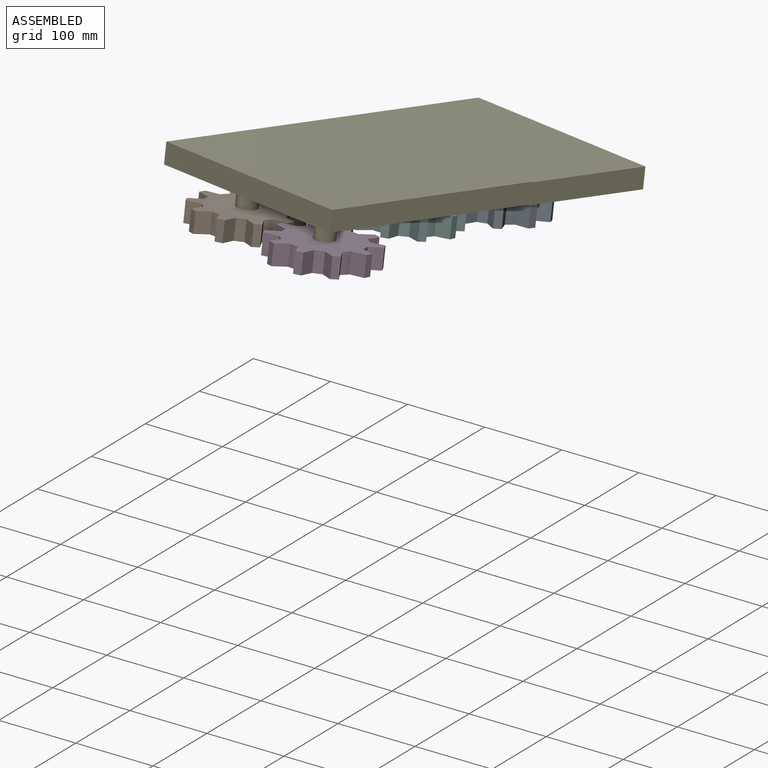
[diagram: assembled view]
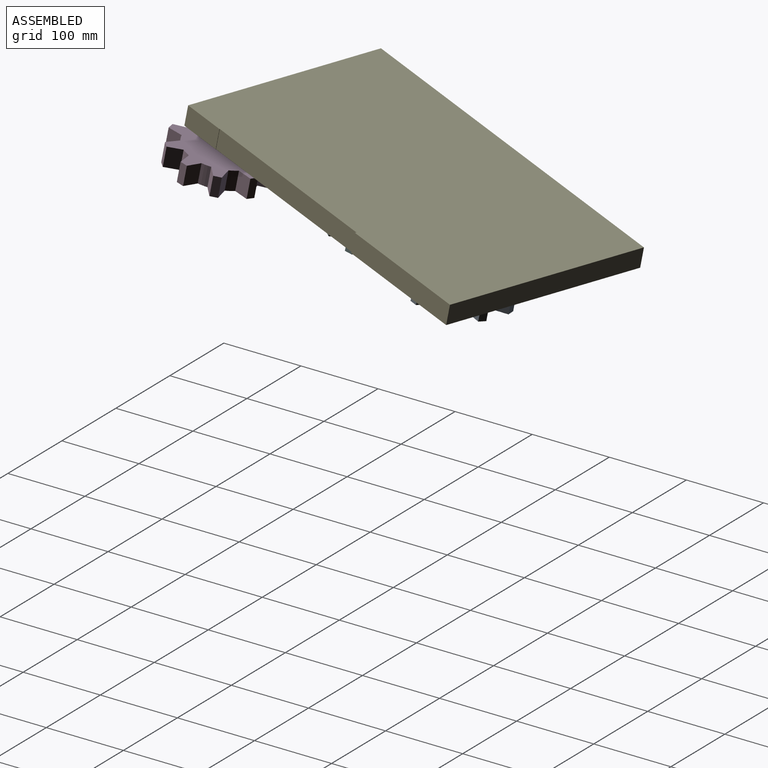
[diagram: assembled view, second angle]
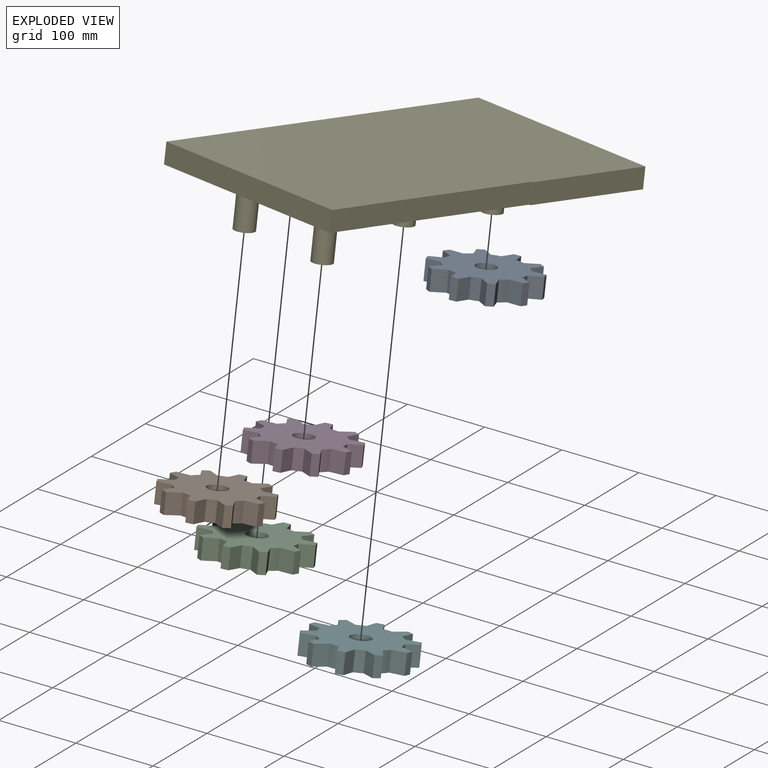
[diagram: exploded view]
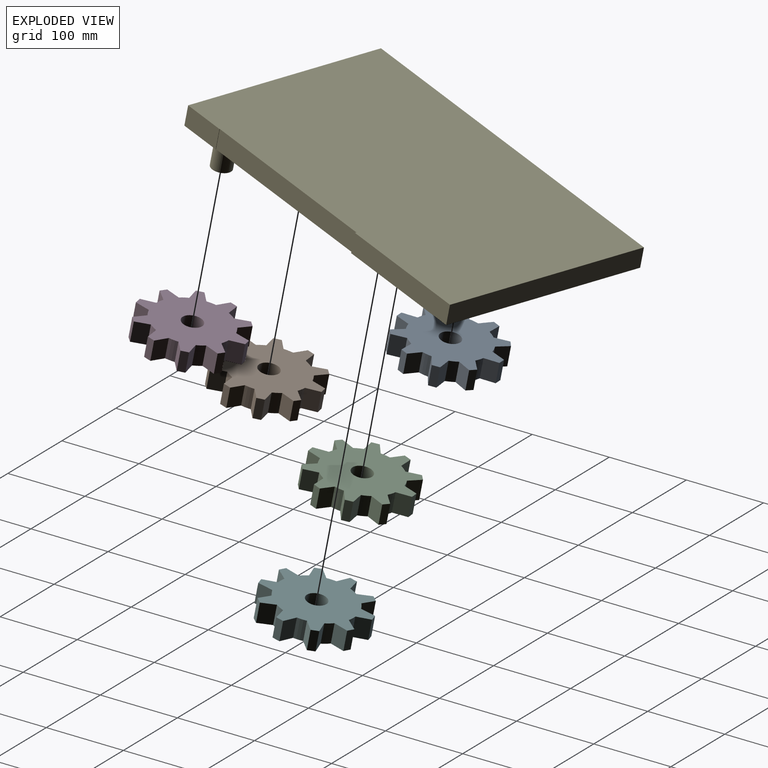
[diagram: exploded view, second angle]
ASSEMBLY  parts=6 mates=5
PART A: 43 faces, bbox 130.3x25.4x126.7 mm
  f0: plane 25.4x17.58mm, normal (0.24,0,0.97), area 459.7mm2, adj f1,f39,f40,f41
  f1: cylinder r=48.3mm len=25.4mm, axis (0,1,0), area 293.1mm2, adj f0,f2,f40,f41
  f2: plane 25.4x14.51mm, normal (0.79,0,-0.62), area 468.7mm2, adj f1,f3,f40,f41
  f3: plane 25.4x7.47mm, normal (0.8,0,0.6), area 237.7mm2, adj f2,f4,f40,f41
  f4: plane 25.4x16.74mm, normal (-0.38,0,0.93), area 459.7mm2, adj f3,f5,f40,f41
  f5: cylinder r=48.3mm len=25.4mm, axis (0,1,0), area 293.1mm2, adj f4,f6,f40,f41
  f6: plane 25.4x18.44mm, normal (1,0,-0.04), area 468.7mm2, adj f5,f7,f40,f41
  f7: plane 25.4x8.95mm, normal (0.29,0,0.96), area 237.7mm2, adj f6,f8,f40,f41
  f8: plane 25.4x15.4mm, normal (-0.85,0,0.53), area 459.7mm2, adj f7,f9,f40,f41
  f9: cylinder r=48.3mm len=25.4mm, axis (0,1,0), area 293.1mm2, adj f8,f10,f40,f41
  f10: plane 25.4x15.32mm, normal (0.83,0,0.56), area 468.7mm2, adj f9,f11,f40,f41
  f11: plane 25.4x8.85mm, normal (-0.33,0,0.95), area 237.7mm2, adj f10,f12,f40,f41
  f12: plane 25.4x18.05mm, normal (-1,0,-0.08), area 459.7mm2, adj f11,f13,f40,f41
  f13: cylinder r=48.3mm len=25.4mm, axis (0,1,0), area 293.1mm2, adj f12,f14,f40,f41
  f14: plane 25.4x17.32mm, normal (0.34,0,0.94), area 468.7mm2, adj f13,f15,f40,f41
  f15: plane 25.4x7.67mm, normal (-0.82,0,0.57), area 237.7mm2, adj f14,f16,f40,f41
  f16: plane 25.4x13.8mm, normal (-0.76,0,-0.65), area 459.7mm2, adj f15,f17,f40,f41
  f17: cylinder r=48.3mm len=25.4mm, axis (0,1,0), area 293.1mm2, adj f16,f18,f40,f41
  f18: plane 25.4x17.75mm, normal (-0.27,0,0.96), area 468.7mm2, adj f17,f19,f40,f41
  f19: plane 25.4x9.36mm, normal (-1,0,-0.02), area 237.7mm2, adj f18,f20,f40,f41
  f20: plane 25.4x17.58mm, normal (-0.24,0,-0.97), area 459.7mm2, adj f19,f21,f40,f41
  f21: cylinder r=48.3mm len=25.4mm, axis (0,1,0), area 293.1mm2, adj f20,f22,f40,f41
  f22: plane 25.4x14.51mm, normal (-0.79,0,0.62), area 468.7mm2, adj f21,f23,f40,f41
  f23: plane 25.4x7.47mm, normal (-0.8,0,-0.6), area 237.7mm2, adj f22,f24,f40,f41
  f24: plane 25.4x16.74mm, normal (0.38,0,-0.93), area 459.7mm2, adj f23,f25,f40,f41
  f25: cylinder r=48.3mm len=25.4mm, axis (0,1,0), area 293.1mm2, adj f24,f26,f40,f41
  f26: plane 25.4x18.44mm, normal (-1,0,0.04), area 468.7mm2, adj f25,f27,f40,f41
  f27: plane 25.4x8.95mm, normal (-0.29,0,-0.96), area 237.7mm2, adj f26,f28,f40,f41
  f28: plane 25.4x15.4mm, normal (0.85,0,-0.53), area 459.7mm2, adj f27,f29,f40,f41
  f29: cylinder r=48.3mm len=25.4mm, axis (0,1,0), area 293.1mm2, adj f28,f30,f40,f41
  f30: plane 25.4x15.32mm, normal (-0.83,0,-0.56), area 468.7mm2, adj f29,f31,f40,f41
  f31: plane 25.4x8.85mm, normal (0.33,0,-0.95), area 237.7mm2, adj f30,f32,f40,f41
  f32: plane 25.4x18.05mm, normal (1,0,0.08), area 459.7mm2, adj f31,f33,f40,f41
  f33: cylinder r=48.3mm len=25.4mm, axis (0,1,0), area 293.1mm2, adj f32,f34,f40,f41
  f34: plane 25.4x17.32mm, normal (-0.34,0,-0.94), area 468.7mm2, adj f33,f35,f40,f41
  f35: plane 25.4x7.67mm, normal (0.82,0,-0.57), area 237.7mm2, adj f34,f36,f40,f41
  f36: plane 25.4x13.8mm, normal (0.76,0,0.65), area 459.7mm2, adj f35,f37,f40,f41
  f37: cylinder r=48.3mm len=25.4mm, axis (0,1,0), area 293.1mm2, adj f36,f38,f40,f41
  f38: plane 25.4x17.75mm, normal (0.27,0,-0.96), area 468.7mm2, adj f37,f39,f40,f41
  f39: plane 25.4x9.36mm, normal (1,0,0.02), area 237.7mm2, adj f0,f38,f40,f41
  f40: plane 130.27x126.71mm, normal (0,-1,0), area 9186.2mm2, adj f0,f1,f2,f3,f4,f5,f6,f7
  f41: plane 130.27x126.71mm, normal (0,1,0), area 9186.2mm2, adj f0,f1,f2,f3,f4,f5,f6,f7
  f42: cylinder r=12.7mm len=25.4mm, axis (0,-1,0), area 2026.8mm2, adj f40,f41
PART B: 43 faces, bbox 126.7x25.4x130.3 mm
  f0: plane 25.4x17.58mm, normal (-0.97,0,0.24), area 459.7mm2, adj f1,f39,f40,f41
  f1: cylinder r=48.3mm len=25.4mm, axis (0,1,0), area 293.1mm2, adj f0,f2,f40,f41
  f2: plane 25.4x14.51mm, normal (0.62,0,0.79), area 468.7mm2, adj f1,f3,f40,f41
  f3: plane 25.4x7.47mm, normal (-0.6,0,0.8), area 237.7mm2, adj f2,f4,f40,f41
  f4: plane 25.4x16.74mm, normal (-0.93,0,-0.38), area 459.7mm2, adj f3,f5,f40,f41
  f5: cylinder r=48.3mm len=25.4mm, axis (0,1,0), area 293.1mm2, adj f4,f6,f40,f41
  f6: plane 25.4x18.44mm, normal (0.04,0,1), area 468.7mm2, adj f5,f7,f40,f41
  f7: plane 25.4x8.95mm, normal (-0.96,0,0.29), area 237.7mm2, adj f6,f8,f40,f41
  f8: plane 25.4x15.4mm, normal (-0.53,0,-0.85), area 459.7mm2, adj f7,f9,f40,f41
  f9: cylinder r=48.3mm len=25.4mm, axis (0,1,0), area 293.1mm2, adj f8,f10,f40,f41
  f10: plane 25.4x15.32mm, normal (-0.56,0,0.83), area 468.7mm2, adj f9,f11,f40,f41
  f11: plane 25.4x8.85mm, normal (-0.95,0,-0.33), area 237.7mm2, adj f10,f12,f40,f41
  f12: plane 25.4x18.05mm, normal (0.08,0,-1), area 459.7mm2, adj f11,f13,f40,f41
  f13: cylinder r=48.3mm len=25.4mm, axis (0,1,0), area 293.1mm2, adj f12,f14,f40,f41
  f14: plane 25.4x17.32mm, normal (-0.94,0,0.34), area 468.7mm2, adj f13,f15,f40,f41
  f15: plane 25.4x7.67mm, normal (-0.57,0,-0.82), area 237.7mm2, adj f14,f16,f40,f41
  f16: plane 25.4x13.8mm, normal (0.65,0,-0.76), area 459.7mm2, adj f15,f17,f40,f41
  f17: cylinder r=48.3mm len=25.4mm, axis (0,1,0), area 293.1mm2, adj f16,f18,f40,f41
  f18: plane 25.4x17.75mm, normal (-0.96,0,-0.27), area 468.7mm2, adj f17,f19,f40,f41
  f19: plane 25.4x9.36mm, normal (0.02,0,-1), area 237.7mm2, adj f18,f20,f40,f41
  f20: plane 25.4x17.58mm, normal (0.97,0,-0.24), area 459.7mm2, adj f19,f21,f40,f41
  f21: cylinder r=48.3mm len=25.4mm, axis (0,1,0), area 293.1mm2, adj f20,f22,f40,f41
  f22: plane 25.4x14.51mm, normal (-0.62,0,-0.79), area 468.7mm2, adj f21,f23,f40,f41
  f23: plane 25.4x7.47mm, normal (0.6,0,-0.8), area 237.7mm2, adj f22,f24,f40,f41
  f24: plane 25.4x16.74mm, normal (0.93,0,0.38), area 459.7mm2, adj f23,f25,f40,f41
  f25: cylinder r=48.3mm len=25.4mm, axis (0,1,0), area 293.1mm2, adj f24,f26,f40,f41
  f26: plane 25.4x18.44mm, normal (-0.04,0,-1), area 468.7mm2, adj f25,f27,f40,f41
  f27: plane 25.4x8.95mm, normal (0.96,0,-0.29), area 237.7mm2, adj f26,f28,f40,f41
  f28: plane 25.4x15.4mm, normal (0.53,0,0.85), area 459.7mm2, adj f27,f29,f40,f41
  f29: cylinder r=48.3mm len=25.4mm, axis (0,1,0), area 293.1mm2, adj f28,f30,f40,f41
  f30: plane 25.4x15.32mm, normal (0.56,0,-0.83), area 468.7mm2, adj f29,f31,f40,f41
  f31: plane 25.4x8.85mm, normal (0.95,0,0.33), area 237.7mm2, adj f30,f32,f40,f41
  f32: plane 25.4x18.05mm, normal (-0.08,0,1), area 459.7mm2, adj f31,f33,f40,f41
  f33: cylinder r=48.3mm len=25.4mm, axis (0,1,0), area 293.1mm2, adj f32,f34,f40,f41
  f34: plane 25.4x17.32mm, normal (0.94,0,-0.34), area 468.7mm2, adj f33,f35,f40,f41
  f35: plane 25.4x7.67mm, normal (0.57,0,0.82), area 237.7mm2, adj f34,f36,f40,f41
  f36: plane 25.4x13.8mm, normal (-0.65,0,0.76), area 459.7mm2, adj f35,f37,f40,f41
  f37: cylinder r=48.3mm len=25.4mm, axis (0,1,0), area 293.1mm2, adj f36,f38,f40,f41
  f38: plane 25.4x17.75mm, normal (0.96,0,0.27), area 468.7mm2, adj f37,f39,f40,f41
  f39: plane 25.4x9.36mm, normal (-0.02,0,1), area 237.7mm2, adj f0,f38,f40,f41
  f40: plane 130.27x126.71mm, normal (0,-1,0), area 9186.2mm2, adj f0,f1,f2,f3,f4,f5,f6,f7
  f41: plane 130.27x126.71mm, normal (0,1,0), area 9186.2mm2, adj f0,f1,f2,f3,f4,f5,f6,f7
  f42: cylinder r=12.7mm len=25.4mm, axis (0,-1,0), area 2026.8mm2, adj f40,f41
PART C: 43 faces, bbox 130.3x25.4x126.7 mm
  f0: plane 25.4x17.58mm, normal (-0.24,0,-0.97), area 459.7mm2, adj f1,f39,f40,f41
  f1: cylinder r=48.3mm len=25.4mm, axis (0,1,0), area 293.1mm2, adj f0,f2,f40,f41
  f2: plane 25.4x14.51mm, normal (-0.79,0,0.62), area 468.7mm2, adj f1,f3,f40,f41
  f3: plane 25.4x7.47mm, normal (-0.8,0,-0.6), area 237.7mm2, adj f2,f4,f40,f41
  f4: plane 25.4x16.74mm, normal (0.38,0,-0.93), area 459.7mm2, adj f3,f5,f40,f41
  f5: cylinder r=48.3mm len=25.4mm, axis (0,1,0), area 293.1mm2, adj f4,f6,f40,f41
  f6: plane 25.4x18.44mm, normal (-1,0,0.04), area 468.7mm2, adj f5,f7,f40,f41
  f7: plane 25.4x8.95mm, normal (-0.29,0,-0.96), area 237.7mm2, adj f6,f8,f40,f41
  f8: plane 25.4x15.4mm, normal (0.85,0,-0.53), area 459.7mm2, adj f7,f9,f40,f41
  f9: cylinder r=48.3mm len=25.4mm, axis (0,1,0), area 293.1mm2, adj f8,f10,f40,f41
  f10: plane 25.4x15.32mm, normal (-0.83,0,-0.56), area 468.7mm2, adj f9,f11,f40,f41
  f11: plane 25.4x8.85mm, normal (0.33,0,-0.95), area 237.7mm2, adj f10,f12,f40,f41
  f12: plane 25.4x18.05mm, normal (1,0,0.08), area 459.7mm2, adj f11,f13,f40,f41
  f13: cylinder r=48.3mm len=25.4mm, axis (0,1,0), area 293.1mm2, adj f12,f14,f40,f41
  f14: plane 25.4x17.32mm, normal (-0.34,0,-0.94), area 468.7mm2, adj f13,f15,f40,f41
  f15: plane 25.4x7.67mm, normal (0.82,0,-0.57), area 237.7mm2, adj f14,f16,f40,f41
  f16: plane 25.4x13.8mm, normal (0.76,0,0.65), area 459.7mm2, adj f15,f17,f40,f41
  f17: cylinder r=48.3mm len=25.4mm, axis (0,1,0), area 293.1mm2, adj f16,f18,f40,f41
  f18: plane 25.4x17.75mm, normal (0.27,0,-0.96), area 468.7mm2, adj f17,f19,f40,f41
  f19: plane 25.4x9.36mm, normal (1,0,0.02), area 237.7mm2, adj f18,f20,f40,f41
  f20: plane 25.4x17.58mm, normal (0.24,0,0.97), area 459.7mm2, adj f19,f21,f40,f41
  f21: cylinder r=48.3mm len=25.4mm, axis (0,1,0), area 293.1mm2, adj f20,f22,f40,f41
  f22: plane 25.4x14.51mm, normal (0.79,0,-0.62), area 468.7mm2, adj f21,f23,f40,f41
  f23: plane 25.4x7.47mm, normal (0.8,0,0.6), area 237.7mm2, adj f22,f24,f40,f41
  f24: plane 25.4x16.74mm, normal (-0.38,0,0.93), area 459.7mm2, adj f23,f25,f40,f41
  f25: cylinder r=48.3mm len=25.4mm, axis (0,1,0), area 293.1mm2, adj f24,f26,f40,f41
  f26: plane 25.4x18.44mm, normal (1,0,-0.04), area 468.7mm2, adj f25,f27,f40,f41
  f27: plane 25.4x8.95mm, normal (0.29,0,0.96), area 237.7mm2, adj f26,f28,f40,f41
  f28: plane 25.4x15.4mm, normal (-0.85,0,0.53), area 459.7mm2, adj f27,f29,f40,f41
  f29: cylinder r=48.3mm len=25.4mm, axis (0,1,0), area 293.1mm2, adj f28,f30,f40,f41
  f30: plane 25.4x15.32mm, normal (0.83,0,0.56), area 468.7mm2, adj f29,f31,f40,f41
  f31: plane 25.4x8.85mm, normal (-0.33,0,0.95), area 237.7mm2, adj f30,f32,f40,f41
  f32: plane 25.4x18.05mm, normal (-1,0,-0.08), area 459.7mm2, adj f31,f33,f40,f41
  f33: cylinder r=48.3mm len=25.4mm, axis (0,1,0), area 293.1mm2, adj f32,f34,f40,f41
  f34: plane 25.4x17.32mm, normal (0.34,0,0.94), area 468.7mm2, adj f33,f35,f40,f41
  f35: plane 25.4x7.67mm, normal (-0.82,0,0.57), area 237.7mm2, adj f34,f36,f40,f41
  f36: plane 25.4x13.8mm, normal (-0.76,0,-0.65), area 459.7mm2, adj f35,f37,f40,f41
  f37: cylinder r=48.3mm len=25.4mm, axis (0,1,0), area 293.1mm2, adj f36,f38,f40,f41
  f38: plane 25.4x17.75mm, normal (-0.27,0,0.96), area 468.7mm2, adj f37,f39,f40,f41
  f39: plane 25.4x9.36mm, normal (-1,0,-0.02), area 237.7mm2, adj f0,f38,f40,f41
  f40: plane 130.27x126.71mm, normal (0,-1,0), area 9186.2mm2, adj f0,f1,f2,f3,f4,f5,f6,f7
  f41: plane 130.27x126.71mm, normal (0,1,0), area 9186.2mm2, adj f0,f1,f2,f3,f4,f5,f6,f7
  f42: cylinder r=12.7mm len=25.4mm, axis (0,-1,0), area 2026.8mm2, adj f40,f41
PART D: 43 faces, bbox 126.7x25.4x130.3 mm
  f0: plane 25.4x17.58mm, normal (-0.97,0,0.24), area 459.7mm2, adj f1,f39,f40,f41
  f1: cylinder r=48.3mm len=25.4mm, axis (0,1,0), area 293.1mm2, adj f0,f2,f40,f41
  f2: plane 25.4x14.51mm, normal (0.62,0,0.79), area 468.7mm2, adj f1,f3,f40,f41
  f3: plane 25.4x7.47mm, normal (-0.6,0,0.8), area 237.7mm2, adj f2,f4,f40,f41
  f4: plane 25.4x16.74mm, normal (-0.93,0,-0.38), area 459.7mm2, adj f3,f5,f40,f41
  f5: cylinder r=48.3mm len=25.4mm, axis (0,1,0), area 293.1mm2, adj f4,f6,f40,f41
  f6: plane 25.4x18.44mm, normal (0.04,0,1), area 468.7mm2, adj f5,f7,f40,f41
  f7: plane 25.4x8.95mm, normal (-0.96,0,0.29), area 237.7mm2, adj f6,f8,f40,f41
  f8: plane 25.4x15.4mm, normal (-0.53,0,-0.85), area 459.7mm2, adj f7,f9,f40,f41
  f9: cylinder r=48.3mm len=25.4mm, axis (0,1,0), area 293.1mm2, adj f8,f10,f40,f41
  f10: plane 25.4x15.32mm, normal (-0.56,0,0.83), area 468.7mm2, adj f9,f11,f40,f41
  f11: plane 25.4x8.85mm, normal (-0.95,0,-0.33), area 237.7mm2, adj f10,f12,f40,f41
  f12: plane 25.4x18.05mm, normal (0.08,0,-1), area 459.7mm2, adj f11,f13,f40,f41
  f13: cylinder r=48.3mm len=25.4mm, axis (0,1,0), area 293.1mm2, adj f12,f14,f40,f41
  f14: plane 25.4x17.32mm, normal (-0.94,0,0.34), area 468.7mm2, adj f13,f15,f40,f41
  f15: plane 25.4x7.67mm, normal (-0.57,0,-0.82), area 237.7mm2, adj f14,f16,f40,f41
  f16: plane 25.4x13.8mm, normal (0.65,0,-0.76), area 459.7mm2, adj f15,f17,f40,f41
  f17: cylinder r=48.3mm len=25.4mm, axis (0,1,0), area 293.1mm2, adj f16,f18,f40,f41
  f18: plane 25.4x17.75mm, normal (-0.96,0,-0.27), area 468.7mm2, adj f17,f19,f40,f41
  f19: plane 25.4x9.36mm, normal (0.02,0,-1), area 237.7mm2, adj f18,f20,f40,f41
  f20: plane 25.4x17.58mm, normal (0.97,0,-0.24), area 459.7mm2, adj f19,f21,f40,f41
  f21: cylinder r=48.3mm len=25.4mm, axis (0,1,0), area 293.1mm2, adj f20,f22,f40,f41
  f22: plane 25.4x14.51mm, normal (-0.62,0,-0.79), area 468.7mm2, adj f21,f23,f40,f41
  f23: plane 25.4x7.47mm, normal (0.6,0,-0.8), area 237.7mm2, adj f22,f24,f40,f41
  f24: plane 25.4x16.74mm, normal (0.93,0,0.38), area 459.7mm2, adj f23,f25,f40,f41
  f25: cylinder r=48.3mm len=25.4mm, axis (0,1,0), area 293.1mm2, adj f24,f26,f40,f41
  f26: plane 25.4x18.44mm, normal (-0.04,0,-1), area 468.7mm2, adj f25,f27,f40,f41
  f27: plane 25.4x8.95mm, normal (0.96,0,-0.29), area 237.7mm2, adj f26,f28,f40,f41
  f28: plane 25.4x15.4mm, normal (0.53,0,0.85), area 459.7mm2, adj f27,f29,f40,f41
  f29: cylinder r=48.3mm len=25.4mm, axis (0,1,0), area 293.1mm2, adj f28,f30,f40,f41
  f30: plane 25.4x15.32mm, normal (0.56,0,-0.83), area 468.7mm2, adj f29,f31,f40,f41
  f31: plane 25.4x8.85mm, normal (0.95,0,0.33), area 237.7mm2, adj f30,f32,f40,f41
  f32: plane 25.4x18.05mm, normal (-0.08,0,1), area 459.7mm2, adj f31,f33,f40,f41
  f33: cylinder r=48.3mm len=25.4mm, axis (0,1,0), area 293.1mm2, adj f32,f34,f40,f41
  f34: plane 25.4x17.32mm, normal (0.94,0,-0.34), area 468.7mm2, adj f33,f35,f40,f41
  f35: plane 25.4x7.67mm, normal (0.57,0,0.82), area 237.7mm2, adj f34,f36,f40,f41
  f36: plane 25.4x13.8mm, normal (-0.65,0,0.76), area 459.7mm2, adj f35,f37,f40,f41
  f37: cylinder r=48.3mm len=25.4mm, axis (0,1,0), area 293.1mm2, adj f36,f38,f40,f41
  f38: plane 25.4x17.75mm, normal (0.96,0,0.27), area 468.7mm2, adj f37,f39,f40,f41
  f39: plane 25.4x9.36mm, normal (-0.02,0,1), area 237.7mm2, adj f0,f38,f40,f41
  f40: plane 130.27x126.71mm, normal (0,-1,0), area 9186.2mm2, adj f0,f1,f2,f3,f4,f5,f6,f7
  f41: plane 130.27x126.71mm, normal (0,1,0), area 9186.2mm2, adj f0,f1,f2,f3,f4,f5,f6,f7
  f42: cylinder r=12.7mm len=25.4mm, axis (0,-1,0), area 2026.8mm2, adj f40,f41
PART E: 20 faces, bbox 272.3x71.3x440.8 mm
  f0: plane 440.83x25.4mm, normal (1,0,0), area 11197mm2, adj f1,f7,f8,f9
  f1: plane 272.28x25.4mm, normal (0,0,1), area 6916mm2, adj f0,f2,f8,f9
  f2: plane 159.3x25.4mm, normal (-1,0,0), area 4046.1mm2, adj f1,f3,f8,f9
  f3: plane 25.4x2.06mm, normal (0,0,-1), area 52.2mm2, adj f2,f4,f8,f9
  f4: plane 228.99x25.4mm, normal (-1,0,0), area 5816.4mm2, adj f3,f5,f8,f9
  f5: plane 25.4x0.44mm, normal (0,0,1), area 11.1mm2, adj f4,f6,f8,f9
  f6: plane 52.54x25.4mm, normal (-1,0,0), area 1334.5mm2, adj f5,f7,f8,f9
  f7: plane 270.66x25.4mm, normal (0,0,-1), area 6874.8mm2, adj f0,f6,f8,f9
  f8: plane 440.83x272.28mm, normal (0,-1,0), area 116990.9mm2, adj f0,f1,f2,f3,f4,f5,f6,f7
  f9: plane 440.83x272.28mm, normal (0,1,0), area 119474mm2, adj f0,f1,f2,f3,f4,f5,f6,f7
  f10: cylinder r=12.57mm len=45.94mm, axis (0,1,0), area 3629.5mm2, adj f8,f11
  f11: plane 25.15x25.15mm, normal (0,-1,0), area 496.6mm2, adj f10
  f12: cylinder r=12.57mm len=45.94mm, axis (0,1,0), area 3629.5mm2, adj f8,f13
  f13: plane 25.15x25.15mm, normal (0,-1,0), area 496.6mm2, adj f12
  f14: cylinder r=12.57mm len=45.94mm, axis (0,1,0), area 3629.5mm2, adj f8,f15
  f15: plane 25.15x25.15mm, normal (0,-1,0), area 496.6mm2, adj f14
  f16: cylinder r=12.57mm len=45.94mm, axis (0,1,0), area 3629.5mm2, adj f8,f17
  f17: plane 25.15x25.15mm, normal (0,-1,0), area 496.6mm2, adj f16
  f18: cylinder r=12.57mm len=45.94mm, axis (0,1,0), area 3629.5mm2, adj f8,f19
  f19: plane 25.15x25.15mm, normal (0,-1,0), area 496.6mm2, adj f18
PART F: 43 faces, bbox 126.7x25.4x130.3 mm
  f0: plane 25.4x17.58mm, normal (0.97,0,-0.24), area 459.7mm2, adj f1,f39,f40,f41
  f1: cylinder r=48.3mm len=25.4mm, axis (0,1,0), area 293.1mm2, adj f0,f2,f40,f41
  f2: plane 25.4x14.51mm, normal (-0.62,0,-0.79), area 468.7mm2, adj f1,f3,f40,f41
  f3: plane 25.4x7.47mm, normal (0.6,0,-0.8), area 237.7mm2, adj f2,f4,f40,f41
  f4: plane 25.4x16.74mm, normal (0.93,0,0.38), area 459.7mm2, adj f3,f5,f40,f41
  f5: cylinder r=48.3mm len=25.4mm, axis (0,1,0), area 293.1mm2, adj f4,f6,f40,f41
  f6: plane 25.4x18.44mm, normal (-0.04,0,-1), area 468.7mm2, adj f5,f7,f40,f41
  f7: plane 25.4x8.95mm, normal (0.96,0,-0.29), area 237.7mm2, adj f6,f8,f40,f41
  f8: plane 25.4x15.4mm, normal (0.53,0,0.85), area 459.7mm2, adj f7,f9,f40,f41
  f9: cylinder r=48.3mm len=25.4mm, axis (0,1,0), area 293.1mm2, adj f8,f10,f40,f41
  f10: plane 25.4x15.32mm, normal (0.56,0,-0.83), area 468.7mm2, adj f9,f11,f40,f41
  f11: plane 25.4x8.85mm, normal (0.95,0,0.33), area 237.7mm2, adj f10,f12,f40,f41
  f12: plane 25.4x18.05mm, normal (-0.08,0,1), area 459.7mm2, adj f11,f13,f40,f41
  f13: cylinder r=48.3mm len=25.4mm, axis (0,1,0), area 293.1mm2, adj f12,f14,f40,f41
  f14: plane 25.4x17.32mm, normal (0.94,0,-0.34), area 468.7mm2, adj f13,f15,f40,f41
  f15: plane 25.4x7.67mm, normal (0.57,0,0.82), area 237.7mm2, adj f14,f16,f40,f41
  f16: plane 25.4x13.8mm, normal (-0.65,0,0.76), area 459.7mm2, adj f15,f17,f40,f41
  f17: cylinder r=48.3mm len=25.4mm, axis (0,1,0), area 293.1mm2, adj f16,f18,f40,f41
  f18: plane 25.4x17.75mm, normal (0.96,0,0.27), area 468.7mm2, adj f17,f19,f40,f41
  f19: plane 25.4x9.36mm, normal (-0.02,0,1), area 237.7mm2, adj f18,f20,f40,f41
  f20: plane 25.4x17.58mm, normal (-0.97,0,0.24), area 459.7mm2, adj f19,f21,f40,f41
  f21: cylinder r=48.3mm len=25.4mm, axis (0,1,0), area 293.1mm2, adj f20,f22,f40,f41
  f22: plane 25.4x14.51mm, normal (0.62,0,0.79), area 468.7mm2, adj f21,f23,f40,f41
  f23: plane 25.4x7.47mm, normal (-0.6,0,0.8), area 237.7mm2, adj f22,f24,f40,f41
  f24: plane 25.4x16.74mm, normal (-0.93,0,-0.38), area 459.7mm2, adj f23,f25,f40,f41
  f25: cylinder r=48.3mm len=25.4mm, axis (0,1,0), area 293.1mm2, adj f24,f26,f40,f41
  f26: plane 25.4x18.44mm, normal (0.04,0,1), area 468.7mm2, adj f25,f27,f40,f41
  f27: plane 25.4x8.95mm, normal (-0.96,0,0.29), area 237.7mm2, adj f26,f28,f40,f41
  f28: plane 25.4x15.4mm, normal (-0.53,0,-0.85), area 459.7mm2, adj f27,f29,f40,f41
  f29: cylinder r=48.3mm len=25.4mm, axis (0,1,0), area 293.1mm2, adj f28,f30,f40,f41
  f30: plane 25.4x15.32mm, normal (-0.56,0,0.83), area 468.7mm2, adj f29,f31,f40,f41
  f31: plane 25.4x8.85mm, normal (-0.95,0,-0.33), area 237.7mm2, adj f30,f32,f40,f41
  f32: plane 25.4x18.05mm, normal (0.08,0,-1), area 459.7mm2, adj f31,f33,f40,f41
  f33: cylinder r=48.3mm len=25.4mm, axis (0,1,0), area 293.1mm2, adj f32,f34,f40,f41
  f34: plane 25.4x17.32mm, normal (-0.94,0,0.34), area 468.7mm2, adj f33,f35,f40,f41
  f35: plane 25.4x7.67mm, normal (-0.57,0,-0.82), area 237.7mm2, adj f34,f36,f40,f41
  f36: plane 25.4x13.8mm, normal (0.65,0,-0.76), area 459.7mm2, adj f35,f37,f40,f41
  f37: cylinder r=48.3mm len=25.4mm, axis (0,1,0), area 293.1mm2, adj f36,f38,f40,f41
  f38: plane 25.4x17.75mm, normal (-0.96,0,-0.27), area 468.7mm2, adj f37,f39,f40,f41
  f39: plane 25.4x9.36mm, normal (0.02,0,-1), area 237.7mm2, adj f0,f38,f40,f41
  f40: plane 130.27x126.71mm, normal (0,-1,0), area 9186.2mm2, adj f0,f1,f2,f3,f4,f5,f6,f7
  f41: plane 130.27x126.71mm, normal (0,1,0), area 9186.2mm2, adj f0,f1,f2,f3,f4,f5,f6,f7
  f42: cylinder r=12.7mm len=25.4mm, axis (0,-1,0), area 2026.8mm2, adj f40,f41
PLACE A rot(axis=(0.81,-0.46,-0.37),91.7deg) t=(449.67,182.66,123.76)mm
PLACE B rot(axis=(0.49,-0.68,-0.55),119.8deg) t=(155.03,-162.12,57.26)mm
PLACE C rot(axis=(-0.58,-0.52,0.62),129deg) t=(222,-219.05,-86.39)mm
PLACE D rot(axis=(0.35,0.72,0.6),133.2deg) t=(276.68,-169.69,189.18)mm
PLACE E rot(axis=(0.08,0.77,0.64),168.4deg) t=(164,-275.01,125.63)mm
PLACE F rot(axis=(0.11,0.77,0.63),164.4deg) t=(244.04,-221.01,198.64)mm
MATE revolute D.f1 <-> E.f10  axis (0.01,-0.19,-0.98) through (278.14,-198.2,39.48)mm
MATE revolute F.f1 <-> E.f16  axis (0.01,-0.19,-0.98) through (249.36,-5.83,2.56)mm
MATE revolute A.f1 <-> E.f18  axis (0.01,-0.19,-0.98) through (280.84,112.51,-19.67)mm
MATE revolute B.f1 <-> E.f12  axis (0.01,-0.19,-0.98) through (155.27,-166.87,32.31)mm
MATE revolute C.f1 <-> E.f14  axis (0.01,-0.19,-0.98) through (132.03,-46.8,9.22)mm
